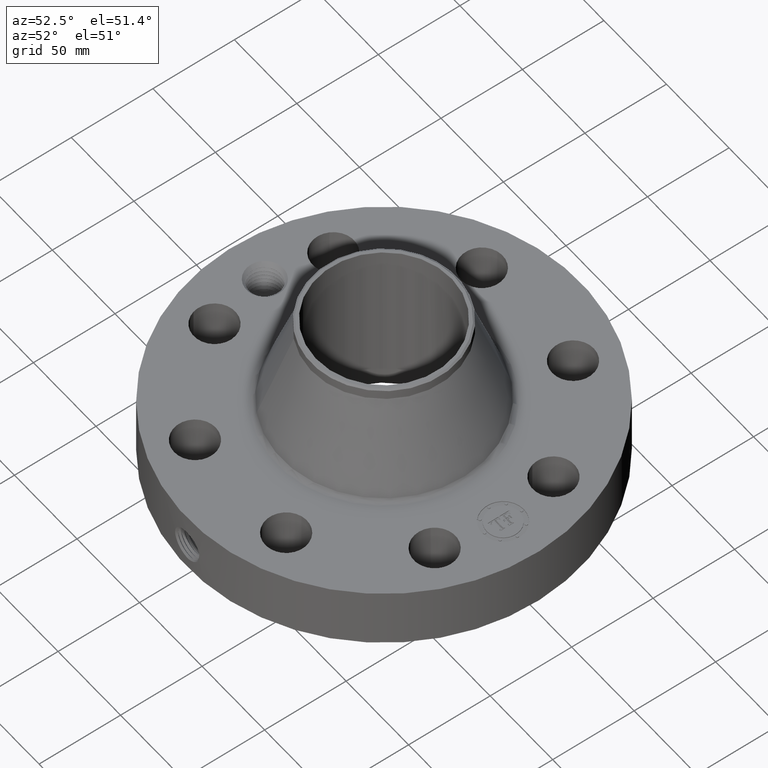
[diagram: clean part render]
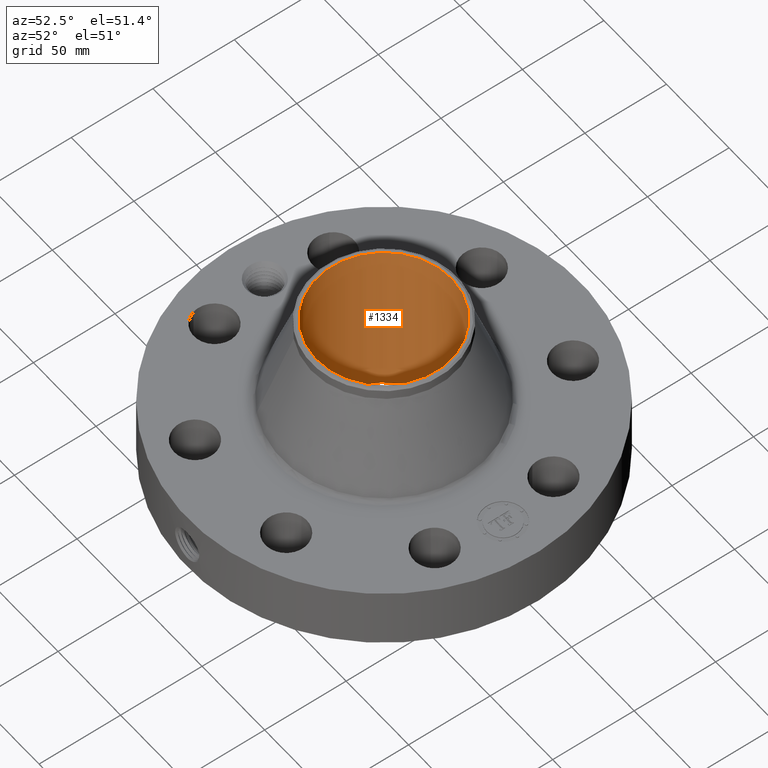
[diagram: same view with one face highlighted and labeled with its STEP entity id]
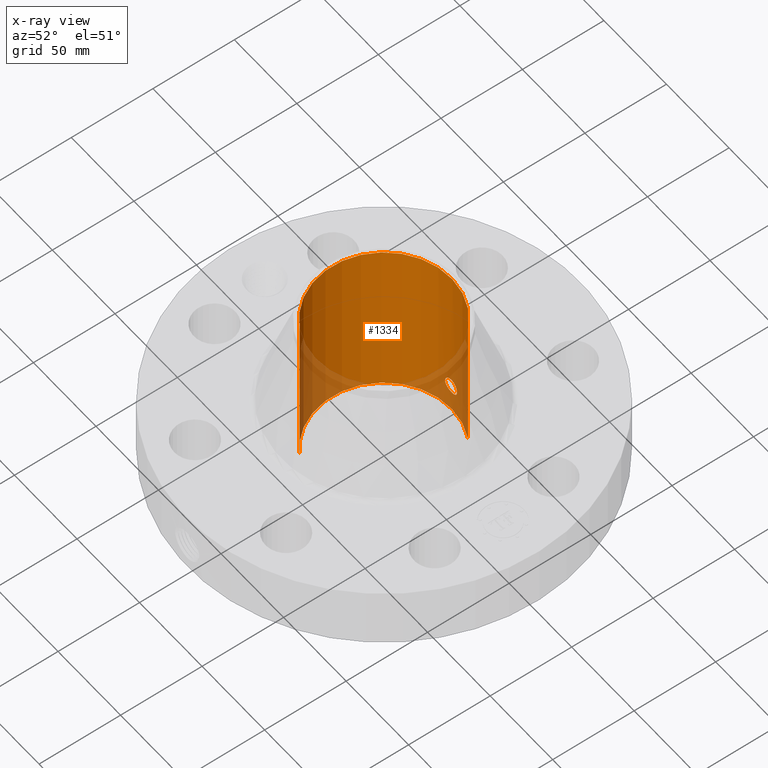
[diagram: x-ray of the same camera — body ghosted, the highlighted face saturated]
A machine part, auxiliary view. The second image highlights one B-rep face of the part: STEP entity #1334.
The next image is the same camera in x-ray: the body ghosted, the highlighted face saturated — about 19% of this face is hidden behind the body in this view.
In plain terms, the highlighted cylindrical surface (partial cylindrical patch) has radius 41.402 mm, axis along (0, 0, -1).
Its self-contained STEP definition (entity closure, byte-faithful):
#239=AXIS2_PLACEMENT_3D('Circle Axis2P3D',#237,#238,$) ;
#1211=AXIS2_PLACEMENT_3D('Cylinder Axis2P3D',#1208,#1209,#1210) ;
#1283=AXIS2_PLACEMENT_3D('Circle Axis2P3D',#1281,#1282,$) ;
#232=CARTESIAN_POINT('Vertex',(0.781463627928,1.43045957589,0.250000000001)) ;
#234=CARTESIAN_POINT('Vertex',(-0.781463627928,-1.43045957589,0.250000000001)) ;
#237=CARTESIAN_POINT('Axis2P3D Location',(0.,0.,0.250000000001)) ;
#1208=CARTESIAN_POINT('Axis2P3D Location',(0.,0.,2.25000000001)) ;
#1217=CARTESIAN_POINT('Vertex',(0.781463627928,1.43045957589,4.25000000002)) ;
#1219=CARTESIAN_POINT('Vertex',(-0.781463627928,-1.43045957589,4.25000000002)) ;
#1222=CARTESIAN_POINT('Line Origine',(0.781463627928,1.43045957589,2.25000000001)) ;
#1227=CARTESIAN_POINT('Line Origine',(-0.781463627928,-1.43045957589,2.25000000001)) ;
#1281=CARTESIAN_POINT('Axis2P3D Location',(0.,0.,4.25000000002)) ;
#1293=CARTESIAN_POINT('Control Point',(0.164546730355,1.62167332516,1.02989228849)) ;
#1294=CARTESIAN_POINT('Control Point',(0.153730904127,1.62277077729,1.0496905256)) ;
#1295=CARTESIAN_POINT('Control Point',(0.139942349399,1.62407876481,1.06785305462)) ;
#1296=CARTESIAN_POINT('Control Point',(0.123505340189,1.62546441109,1.08379435674)) ;
#1297=CARTESIAN_POINT('Control Point',(0.077114946819,1.62865979876,1.11682180557)) ;
#1298=CARTESIAN_POINT('Control Point',(0.0210941914881,1.63041284554,1.13100701308)) ;
#1299=CARTESIAN_POINT('Control Point',(-0.0139425212409,1.6304972922,1.13166330221)) ;
#1300=CARTESIAN_POINT('Control Point',(-0.0704792362507,1.62897951384,1.11957422647)) ;
#1301=CARTESIAN_POINT('Control Point',(-0.118085597953,1.62587625767,1.08828178895)) ;
#1302=CARTESIAN_POINT('Control Point',(-0.135115102465,1.62449678863,1.07294827408)) ;
#1303=CARTESIAN_POINT('Control Point',(-0.17446207388,1.62087059832,1.02491440309)) ;
#1304=CARTESIAN_POINT('Control Point',(-0.192229414379,1.61861986851,0.963955475383)) ;
#1305=CARTESIAN_POINT('Control Point',(-0.192985142734,1.61851751906,0.923157994582)) ;
#1306=CARTESIAN_POINT('Control Point',(-0.183175157007,1.61978314997,0.884206817776)) ;
#1307=CARTESIAN_POINT('Control Point',(-0.164546730355,1.62167332516,0.850107711515)) ;
#1308=CARTESIAN_POINT('Vertex',(0.164546730355,1.62167332516,1.02989228849)) ;
#1310=CARTESIAN_POINT('Vertex',(-0.164546730355,1.62167332516,0.850107711515)) ;
#1314=CARTESIAN_POINT('Control Point',(-0.164546730355,1.62167332516,0.850107711515)) ;
#1315=CARTESIAN_POINT('Control Point',(-0.153730904132,1.62277077729,0.830309474413)) ;
#1316=CARTESIAN_POINT('Control Point',(-0.139942349412,1.62407876481,0.812146945408)) ;
#1317=CARTESIAN_POINT('Control Point',(-0.123505340168,1.6254644111,0.796205643252)) ;
#1318=CARTESIAN_POINT('Control Point',(-0.0771149468066,1.62865979876,0.763178194435)) ;
#1319=CARTESIAN_POINT('Control Point',(-0.0210941914897,1.63041284554,0.748992986923)) ;
#1320=CARTESIAN_POINT('Control Point',(0.0139425212503,1.6304972922,0.748336697802)) ;
#1321=CARTESIAN_POINT('Control Point',(0.0704792362504,1.62897951384,0.760425773537)) ;
#1322=CARTESIAN_POINT('Control Point',(0.118085597946,1.62587625767,0.791718211054)) ;
#1323=CARTESIAN_POINT('Control Point',(0.135115102475,1.62449678863,0.807051725935)) ;
#1324=CARTESIAN_POINT('Control Point',(0.174462073878,1.62087059832,0.855085596919)) ;
#1325=CARTESIAN_POINT('Control Point',(0.192229414376,1.61861986851,0.916044524613)) ;
#1326=CARTESIAN_POINT('Control Point',(0.19298514273,1.61851751906,0.956842005442)) ;
#1327=CARTESIAN_POINT('Control Point',(0.183175157003,1.61978314997,0.995793182238)) ;
#1328=CARTESIAN_POINT('Control Point',(0.164546730355,1.62167332516,1.02989228849)) ;
#238=DIRECTION('Axis2P3D Direction',(0.,0.,-0.0393700787402)) ;
#1209=DIRECTION('Axis2P3D Direction',(0.,0.,-0.0393700787402)) ;
#1210=DIRECTION('Axis2P3D XDirection',(-0.0188750212049,-0.0345504945626,0.)) ;
#1223=DIRECTION('Vector Direction',(0.,0.,-0.0393700787402)) ;
#1228=DIRECTION('Vector Direction',(0.,0.,-0.0393700787402)) ;
#1282=DIRECTION('Axis2P3D Direction',(0.,0.,-0.0393700787402)) ;
#1224=VECTOR('Line Direction',#1223,0.0393700787402) ;
#1229=VECTOR('Line Direction',#1228,0.0393700787402) ;
#1287=ORIENTED_EDGE('',*,*,#1285,.F.) ;
#1288=ORIENTED_EDGE('',*,*,#1231,.T.) ;
#1289=ORIENTED_EDGE('',*,*,#241,.T.) ;
#1290=ORIENTED_EDGE('',*,*,#1226,.F.) ;
#1331=ORIENTED_EDGE('',*,*,#1312,.F.) ;
#1332=ORIENTED_EDGE('',*,*,#1329,.F.) ;
#1333=FACE_BOUND('',#1330,.T.) ;
#1334=ADVANCED_FACE('PartBody',(#1291,#1333),#1212,.F.) ;
#1292=B_SPLINE_CURVE_WITH_KNOTS('',5,(#1293,#1294,#1295,#1296,#1297,#1298,#1299,#1300,#1301,#1302,#1303,#1304,#1305,#1306,#1307),.UNSPECIFIED.,.F.,.U.,(6,3,3,3,6),(0.,4.05667777062,10.129692402,14.1893661892,21.1763057632),.UNSPECIFIED.) ;
#1313=B_SPLINE_CURVE_WITH_KNOTS('',5,(#1314,#1315,#1316,#1317,#1318,#1319,#1320,#1321,#1322,#1323,#1324,#1325,#1326,#1327,#1328),.UNSPECIFIED.,.F.,.U.,(6,3,3,3,6),(0.,4.05667776867,10.1296923996,14.1893661857,21.1763057583),.UNSPECIFIED.) ;
#240=CIRCLE('generated circle',#239,1.63000000001) ;
#1284=CIRCLE('generated circle',#1283,1.63000000001) ;
#1212=CYLINDRICAL_SURFACE('generated cylinder',#1211,1.63000000001) ;
#241=EDGE_CURVE('',#235,#233,#240,.T.) ;
#1226=EDGE_CURVE('',#1218,#233,#1225,.T.) ;
#1231=EDGE_CURVE('',#1220,#235,#1230,.T.) ;
#1285=EDGE_CURVE('',#1220,#1218,#1284,.T.) ;
#1312=EDGE_CURVE('',#1309,#1311,#1292,.T.) ;
#1329=EDGE_CURVE('',#1311,#1309,#1313,.T.) ;
#1286=EDGE_LOOP('',(#1287,#1288,#1289,#1290)) ;
#1330=EDGE_LOOP('',(#1331,#1332)) ;
#1291=FACE_OUTER_BOUND('',#1286,.T.) ;
#1225=LINE('Line',#1222,#1224) ;
#1230=LINE('Line',#1227,#1229) ;
#233=VERTEX_POINT('',#232) ;
#235=VERTEX_POINT('',#234) ;
#1218=VERTEX_POINT('',#1217) ;
#1220=VERTEX_POINT('',#1219) ;
#1309=VERTEX_POINT('',#1308) ;
#1311=VERTEX_POINT('',#1310) ;